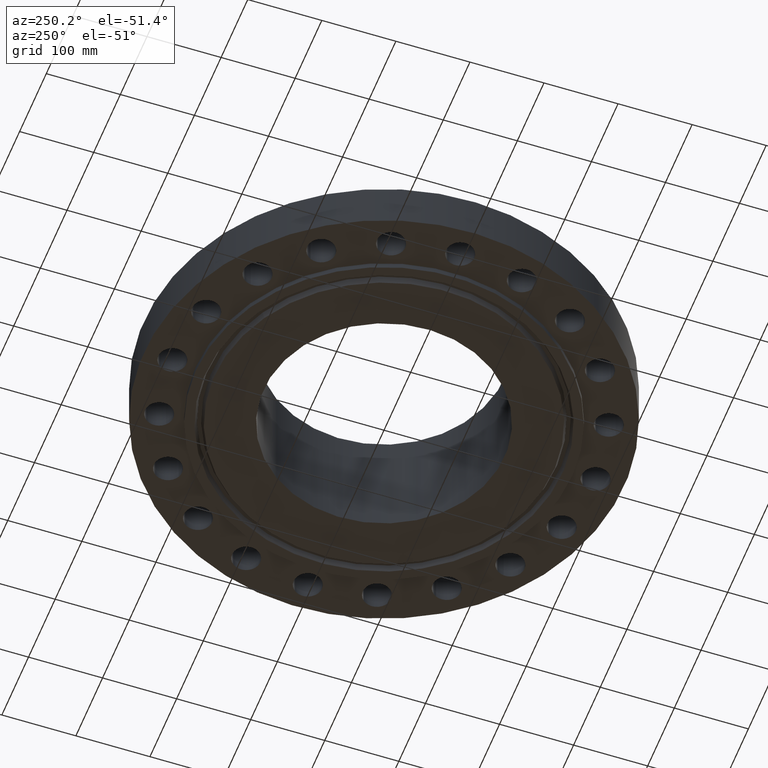
[diagram: clean part render]
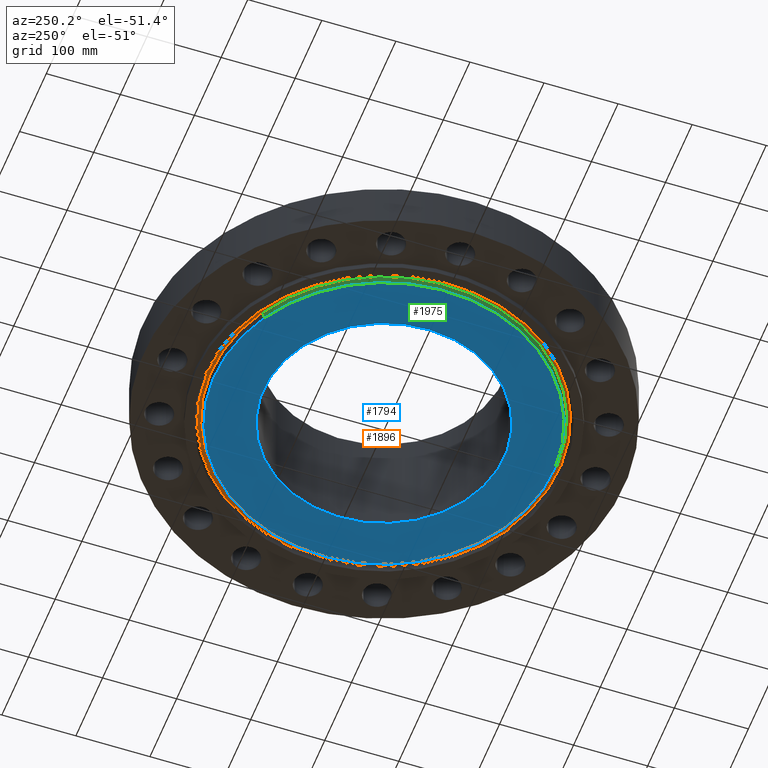
[diagram: same view with three faces highlighted in distinct colors, each labeled with its STEP entity id]
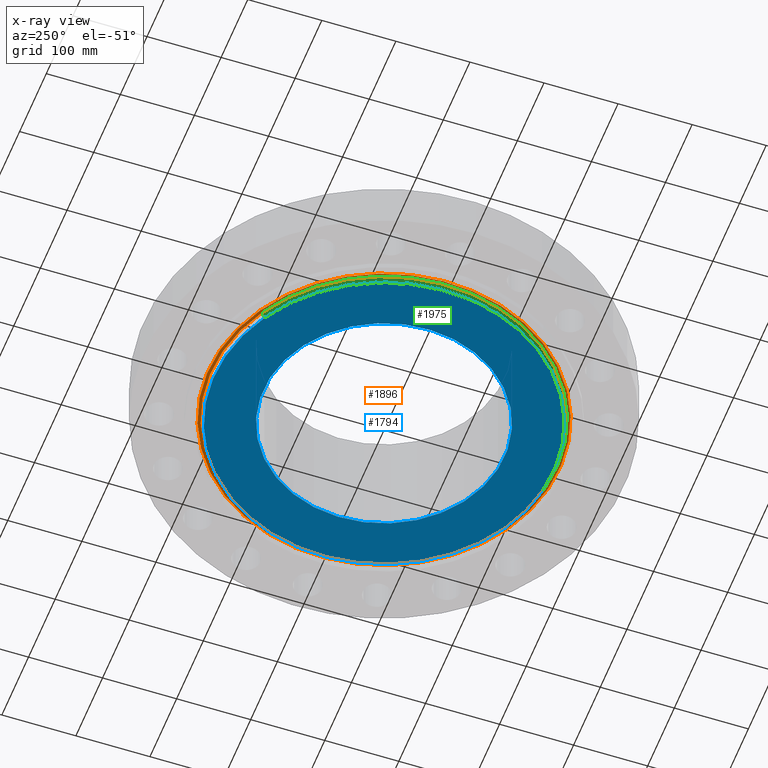
[diagram: x-ray of the same camera — body ghosted, the three highlighted faces saturated]
A machine part, auxiliary view with three faces highlighted in distinct colors.
The next image is the same camera in x-ray (body ghosted, the three faces saturated) — at least one of them is partly hidden behind the body in this view.
Their STEP definitions:

[orange] entity #1896 — the highlighted planar face has unit normal (0, 0, -1).
#570=AXIS2_PLACEMENT_3D('Plane Axis2P3D',#567,#568,#569) ;
#1818=AXIS2_PLACEMENT_3D('Circle Axis2P3D',#1816,#1817,$) ;
#1864=AXIS2_PLACEMENT_3D('Circle Axis2P3D',#1862,#1863,$) ;
#1880=AXIS2_PLACEMENT_3D('Circle Axis2P3D',#1878,#1879,$) ;
#1889=AXIS2_PLACEMENT_3D('Circle Axis2P3D',#1887,#1888,$) ;
#567=CARTESIAN_POINT('Axis2P3D Location',(0.,10.,0.)) ;
#1813=CARTESIAN_POINT('Vertex',(-4.47357767773,8.1888290112,-2.84112191341E-016)) ;
#1816=CARTESIAN_POINT('Axis2P3D Location',(0.,0.,-2.84112191341E-016)) ;
#1820=CARTESIAN_POINT('Vertex',(4.47357767773,-8.1888290112,-2.84112191341E-016)) ;
#1862=CARTESIAN_POINT('Axis2P3D Location',(0.,0.,-2.84112191341E-016)) ;
#1878=CARTESIAN_POINT('Axis2P3D Location',(0.,0.,0.)) ;
#1882=CARTESIAN_POINT('Vertex',(4.39579478649,-8.04644838383,4.54579506146E-016)) ;
#1884=CARTESIAN_POINT('Vertex',(-4.39579478649,8.04644838383,4.54579506146E-016)) ;
#1887=CARTESIAN_POINT('Axis2P3D Location',(0.,0.,0.)) ;
#568=DIRECTION('Axis2P3D Direction',(0.,0.,-0.0393700787402)) ;
#569=DIRECTION('Axis2P3D XDirection',(0.0393700787402,0.,0.)) ;
#1817=DIRECTION('Axis2P3D Direction',(0.,0.,0.0393700787402)) ;
#1863=DIRECTION('Axis2P3D Direction',(0.,0.,0.0393700787402)) ;
#1879=DIRECTION('Axis2P3D Direction',(0.,0.,-0.0393700787402)) ;
#1888=DIRECTION('Axis2P3D Direction',(0.,0.,-0.0393700787402)) ;
#1875=ORIENTED_EDGE('',*,*,#1822,.F.) ;
#1876=ORIENTED_EDGE('',*,*,#1866,.F.) ;
#1893=ORIENTED_EDGE('',*,*,#1886,.T.) ;
#1894=ORIENTED_EDGE('',*,*,#1891,.T.) ;
#1895=FACE_BOUND('',#1892,.T.) ;
#1896=ADVANCED_FACE('PartBody',(#1877,#1895),#571,.T.) ;
#1819=CIRCLE('generated circle',#1818,9.33112093017) ;
#1865=CIRCLE('generated circle',#1864,9.33112093017) ;
#1881=CIRCLE('generated circle',#1880,9.16887906991) ;
#1890=CIRCLE('generated circle',#1889,9.16887906991) ;
#1822=EDGE_CURVE('',#1814,#1821,#1819,.T.) ;
#1866=EDGE_CURVE('',#1821,#1814,#1865,.T.) ;
#1886=EDGE_CURVE('',#1883,#1885,#1881,.F.) ;
#1891=EDGE_CURVE('',#1885,#1883,#1890,.F.) ;
#1874=EDGE_LOOP('',(#1875,#1876)) ;
#1892=EDGE_LOOP('',(#1893,#1894)) ;
#1877=FACE_OUTER_BOUND('',#1874,.T.) ;
#571=PLANE('',#570) ;
#1814=VERTEX_POINT('',#1813) ;
#1821=VERTEX_POINT('',#1820) ;
#1883=VERTEX_POINT('',#1882) ;
#1885=VERTEX_POINT('',#1884) ;

[blue] entity #1794 — the highlighted planar face has unit normal (0, 0, -1).
#427=AXIS2_PLACEMENT_3D('Circle Axis2P3D',#425,#426,$) ;
#446=AXIS2_PLACEMENT_3D('Circle Axis2P3D',#444,#445,$) ;
#1747=AXIS2_PLACEMENT_3D('Plane Axis2P3D',#1744,#1745,#1746) ;
#1774=AXIS2_PLACEMENT_3D('Circle Axis2P3D',#1772,#1773,$) ;
#1783=AXIS2_PLACEMENT_3D('Circle Axis2P3D',#1781,#1782,$) ;
#422=CARTESIAN_POINT('Vertex',(-3.07120000031,-5.62179389149,-0.313000000001)) ;
#425=CARTESIAN_POINT('Axis2P3D Location',(0.,0.,-0.313000000001)) ;
#429=CARTESIAN_POINT('Vertex',(3.07120000031,5.62179389149,-0.313000000001)) ;
#444=CARTESIAN_POINT('Axis2P3D Location',(0.,0.,-0.313000000001)) ;
#1744=CARTESIAN_POINT('Axis2P3D Location',(0.,6.40600000003,-0.313000000001)) ;
#1772=CARTESIAN_POINT('Axis2P3D Location',(1.1189649382E-015,0.,-0.313000000001)) ;
#1776=CARTESIAN_POINT('Vertex',(-4.3222609433,7.91184558675,-0.313000000001)) ;
#1778=CARTESIAN_POINT('Vertex',(4.3222609433,-7.91184558675,-0.313000000001)) ;
#1781=CARTESIAN_POINT('Axis2P3D Location',(-2.23792987641E-015,0.,-0.313000000001)) ;
#426=DIRECTION('Axis2P3D Direction',(0.,0.,-0.0393700787402)) ;
#445=DIRECTION('Axis2P3D Direction',(0.,0.,-0.0393700787402)) ;
#1745=DIRECTION('Axis2P3D Direction',(0.,0.,-0.0393700787402)) ;
#1746=DIRECTION('Axis2P3D XDirection',(0.0393700787402,0.,0.)) ;
#1773=DIRECTION('Axis2P3D Direction',(0.,0.,-0.0393700787402)) ;
#1782=DIRECTION('Axis2P3D Direction',(0.,0.,-0.0393700787402)) ;
#1787=ORIENTED_EDGE('',*,*,#1780,.T.) ;
#1788=ORIENTED_EDGE('',*,*,#1785,.T.) ;
#1791=ORIENTED_EDGE('',*,*,#448,.F.) ;
#1792=ORIENTED_EDGE('',*,*,#431,.F.) ;
#1793=FACE_BOUND('',#1790,.T.) ;
#1794=ADVANCED_FACE('PartBody',(#1789,#1793),#1748,.T.) ;
#428=CIRCLE('generated circle',#427,6.40600000003) ;
#447=CIRCLE('generated circle',#446,6.40600000003) ;
#1775=CIRCLE('generated circle',#1774,9.01550000004) ;
#1784=CIRCLE('generated circle',#1783,9.01550000004) ;
#431=EDGE_CURVE('',#423,#430,#428,.T.) ;
#448=EDGE_CURVE('',#430,#423,#447,.T.) ;
#1780=EDGE_CURVE('',#1777,#1779,#1775,.T.) ;
#1785=EDGE_CURVE('',#1779,#1777,#1784,.T.) ;
#1786=EDGE_LOOP('',(#1787,#1788)) ;
#1790=EDGE_LOOP('',(#1791,#1792)) ;
#1789=FACE_OUTER_BOUND('',#1786,.T.) ;
#1748=PLANE('',#1747) ;
#423=VERTEX_POINT('',#422) ;
#430=VERTEX_POINT('',#429) ;
#1777=VERTEX_POINT('',#1776) ;
#1779=VERTEX_POINT('',#1778) ;

[green] entity #1975 — the highlighted conical surface has half-angle 23 deg.
#1783=AXIS2_PLACEMENT_3D('Circle Axis2P3D',#1781,#1782,$) ;
#1937=AXIS2_PLACEMENT_3D('Circle Axis2P3D',#1935,#1936,$) ;
#1950=AXIS2_PLACEMENT_3D('Cone Axis2P3D',#1947,#1948,#1949) ;
#1776=CARTESIAN_POINT('Vertex',(-4.3222609433,7.91184558675,-0.313000000001)) ;
#1778=CARTESIAN_POINT('Vertex',(4.3222609433,-7.91184558675,-0.313000000001)) ;
#1781=CARTESIAN_POINT('Axis2P3D Location',(-2.23792987641E-015,0.,-0.313000000001)) ;
#1913=CARTESIAN_POINT('Vertex',(4.3821140669,-8.0214059946,-0.0188873350169)) ;
#1920=CARTESIAN_POINT('Vertex',(-4.3821140669,8.0214059946,-0.0188873350169)) ;
#1935=CARTESIAN_POINT('Axis2P3D Location',(0.,0.,-0.0188873350169)) ;
#1947=CARTESIAN_POINT('Axis2P3D Location',(0.,0.,-0.373000000001)) ;
#1952=CARTESIAN_POINT('Line Origine',(-4.3521875051,7.96662579068,-0.165943667509)) ;
#1957=CARTESIAN_POINT('Line Origine',(4.3521875051,-7.96662579068,-0.165943667509)) ;
#1782=DIRECTION('Axis2P3D Direction',(0.,0.,-0.0393700787402)) ;
#1936=DIRECTION('Axis2P3D Direction',(0.,0.,0.0393700787402)) ;
#1948=DIRECTION('Axis2P3D Direction',(0.,0.,0.0393700787402)) ;
#1949=DIRECTION('Axis2P3D XDirection',(-0.0188750212049,0.0345504945626,0.)) ;
#1953=DIRECTION('Vector Direction',(-0.00737505833565,0.0134999537303,0.0362403485611)) ;
#1958=DIRECTION('Vector Direction',(0.00737505833565,-0.0134999537303,0.0362403485611)) ;
#1954=VECTOR('Line Direction',#1953,0.0393700787402) ;
#1959=VECTOR('Line Direction',#1958,0.0393700787402) ;
#1970=ORIENTED_EDGE('',*,*,#1961,.F.) ;
#1971=ORIENTED_EDGE('',*,*,#1939,.F.) ;
#1972=ORIENTED_EDGE('',*,*,#1956,.T.) ;
#1973=ORIENTED_EDGE('',*,*,#1785,.F.) ;
#1975=ADVANCED_FACE('PartBody',(#1974),#1951,.T.) ;
#1784=CIRCLE('generated circle',#1783,9.01550000004) ;
#1938=CIRCLE('generated circle',#1937,9.14034341945) ;
#1951=CONICAL_SURFACE('Cone',#1950,8.99003151106,0.401425727959) ;
#1785=EDGE_CURVE('',#1779,#1777,#1784,.T.) ;
#1939=EDGE_CURVE('',#1921,#1914,#1938,.T.) ;
#1956=EDGE_CURVE('',#1921,#1777,#1955,.F.) ;
#1961=EDGE_CURVE('',#1914,#1779,#1960,.F.) ;
#1969=EDGE_LOOP('',(#1970,#1971,#1972,#1973)) ;
#1974=FACE_OUTER_BOUND('',#1969,.T.) ;
#1955=LINE('Line',#1952,#1954) ;
#1960=LINE('Line',#1957,#1959) ;
#1777=VERTEX_POINT('',#1776) ;
#1779=VERTEX_POINT('',#1778) ;
#1914=VERTEX_POINT('',#1913) ;
#1921=VERTEX_POINT('',#1920) ;